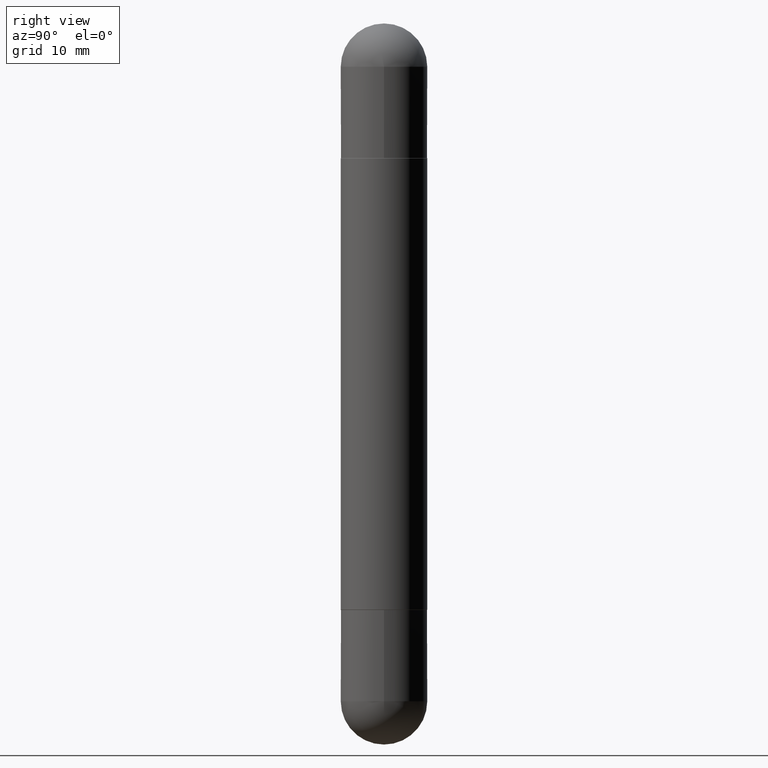
[diagram: clean part render]
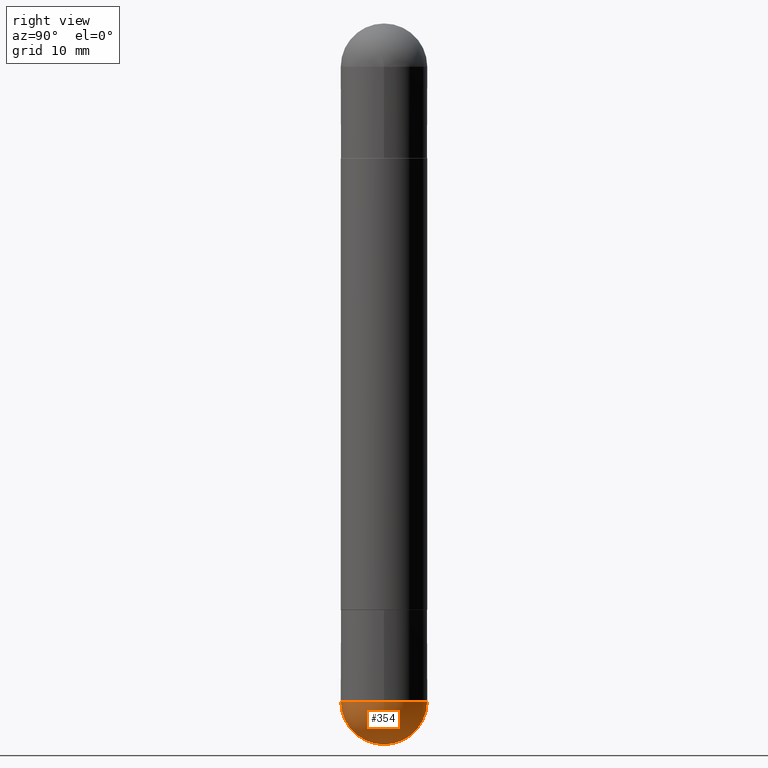
[diagram: same view with one face highlighted and labeled with its STEP entity id]
A machine part, right view. The second image highlights one B-rep face of the part: STEP entity #354.
In plain terms, the highlighted spherical surface has radius 4.4996 mm.
Its self-contained STEP definition (entity closure, byte-faithful):
#49 = DIRECTION ( 'NONE',  ( 1.000000000000000000, -6.982962677686272233E-15, 0.000000000000000000 ) ) ;
#70 = DIRECTION ( 'NONE',  ( -1.000000000000000000, 6.982962677686265922E-15, -4.883557194083112340E-29 ) ) ;
#129 = CIRCLE ( 'NONE', #217, 0.1771500000000000019 ) ;
#143 = VERTEX_POINT ( 'NONE', #774 ) ;
#151 = CARTESIAN_POINT ( 'NONE',  ( 6.456645713973887554E-29, -1.016531254630002526E-14, -2.775649999999999729 ) ) ;
#163 = ORIENTED_EDGE ( 'NONE', *, *, #346, .F. ) ;
#217 = AXIS2_PLACEMENT_3D ( 'NONE', #601, #539, #49 ) ;
#231 = CIRCLE ( 'NONE', #694, 0.1771500000000002517 ) ;
#243 = AXIS2_PLACEMENT_3D ( 'NONE', #151, #265, #783 ) ;
#244 = DIRECTION ( 'NONE',  ( 6.982962677686265922E-15, 1.000000000000000000, -3.084220145260241885E-15 ) ) ;
#264 = ORIENTED_EDGE ( 'NONE', *, *, #349, .F. ) ;
#265 = DIRECTION ( 'NONE',  ( 1.000000000000000000, -6.982962677686265922E-15, 4.883557194083112340E-29 ) ) ;
#278 = DIRECTION ( 'NONE',  ( 1.000000000000000000, -6.982962677686272233E-15, 0.000000000000000000 ) ) ;
#282 = CARTESIAN_POINT ( 'NONE',  ( 1.237031838352189250E-15, 0.1771499999999902042, -2.775650000000000173 ) ) ;
#290 = EDGE_CURVE ( 'NONE', #524, #730, #445, .T. ) ;
#297 = DIRECTION ( 'NONE',  ( -2.445468806185136597E-29, 3.491481338843145583E-15, 1.000000000000000000 ) ) ;
#346 = EDGE_CURVE ( 'NONE', #410, #524, #129, .T. ) ;
#349 = EDGE_CURVE ( 'NONE', #143, #410, #231, .T. ) ;
#354 = ADVANCED_FACE ( 'NONE', ( #795 ), #481, .T. ) ;
#410 = VERTEX_POINT ( 'NONE', #693 ) ;
#420 = DIRECTION ( 'NONE',  ( -7.105427357601001070E-15, -1.000000000000000000, 0.000000000000000000 ) ) ;
#445 = CIRCLE ( 'NONE', #461, 0.1771500000000000019 ) ;
#461 = AXIS2_PLACEMENT_3D ( 'NONE', #740, #297, #278 ) ;
#472 = ORIENTED_EDGE ( 'NONE', *, *, #290, .F. ) ;
#481 = SPHERICAL_SURFACE ( 'NONE', #513, 0.1771500000000002517 ) ;
#490 = DIRECTION ( 'NONE',  ( -1.000000000000000000, 7.105427357601001070E-15, -4.926315508542082329E-29 ) ) ;
#494 = CARTESIAN_POINT ( 'NONE',  ( 6.456645713973887554E-29, -1.016531254630002526E-14, -2.775649999999999729 ) ) ;
#513 = AXIS2_PLACEMENT_3D ( 'NONE', #494, #70, #244 ) ;
#524 = VERTEX_POINT ( 'NONE', #721 ) ;
#535 = EDGE_LOOP ( 'NONE', ( #264, #574, #472, #163 ) ) ;
#539 = DIRECTION ( 'NONE',  ( -2.445468806185136597E-29, 3.491481338843145583E-15, 1.000000000000000000 ) ) ;
#574 = ORIENTED_EDGE ( 'NONE', *, *, #669, .T. ) ;
#601 = CARTESIAN_POINT ( 'NONE',  ( 6.787765491887772680E-29, -9.691130178159974964E-15, -2.775649999999999729 ) ) ;
#669 = EDGE_CURVE ( 'NONE', #143, #730, #817, .T. ) ;
#693 = CARTESIAN_POINT ( 'NONE',  ( -1.258726456398951820E-15, -0.1771500000000100772, -2.775649999999999284 ) ) ;
#694 = AXIS2_PLACEMENT_3D ( 'NONE', #800, #490, #420 ) ;
#721 = CARTESIAN_POINT ( 'NONE',  ( 0.1771500000000000019, -1.027516771911495851E-14, -2.775649999999999729 ) ) ;
#730 = VERTEX_POINT ( 'NONE', #282 ) ;
#740 = CARTESIAN_POINT ( 'NONE',  ( 6.787765491887772680E-29, -9.691130178159974964E-15, -2.775649999999999729 ) ) ;
#774 = CARTESIAN_POINT ( 'NONE',  ( 6.897435148395990892E-29, -1.077298115645264157E-14, -2.952799999999999869 ) ) ;
#783 = DIRECTION ( 'NONE',  ( 6.982962677686265922E-15, 1.000000000000000000, 0.000000000000000000 ) ) ;
#795 = FACE_OUTER_BOUND ( 'NONE', #535, .T. ) ;
#800 = CARTESIAN_POINT ( 'NONE',  ( 6.456645713973887554E-29, -1.016531254630002526E-14, -2.775649999999999729 ) ) ;
#817 = CIRCLE ( 'NONE', #243, 0.1771500000000002517 ) ;